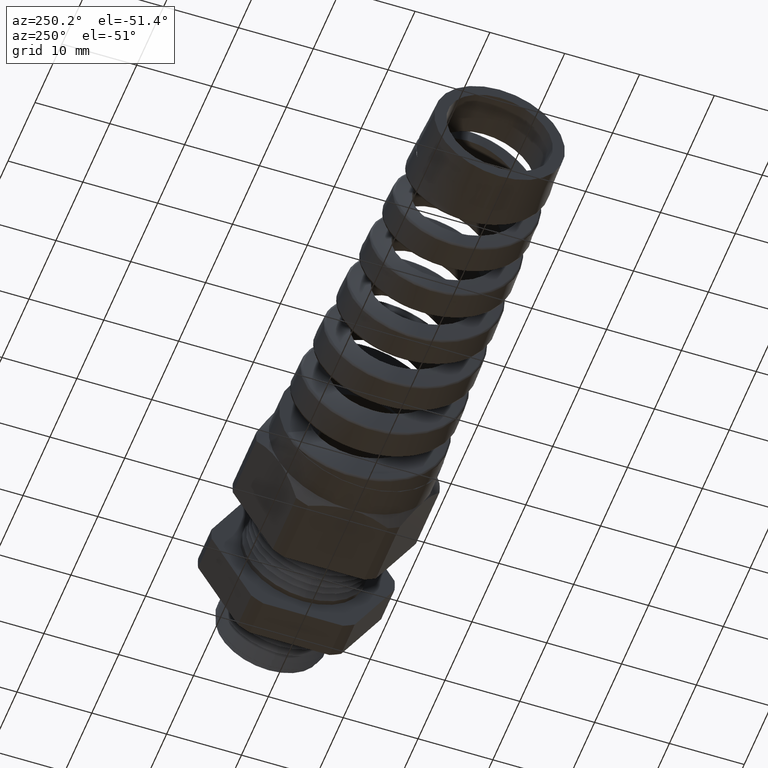
[diagram: clean part render]
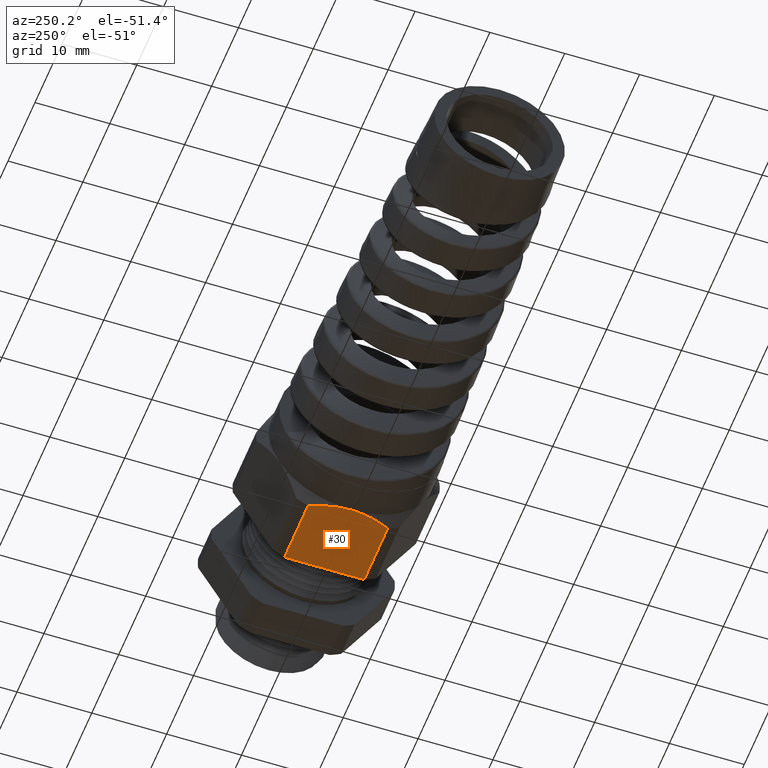
[diagram: same view with one face highlighted and labeled with its STEP entity id]
A machine part, auxiliary view. The second image highlights one B-rep face of the part: STEP entity #30.
In plain terms, the highlighted planar face has unit normal (0, 0, -1).
Its self-contained STEP definition (entity closure, byte-faithful):
#7 = EDGE_CURVE ( 'NONE', #11, #37, #975, .T. ) ;
#11 = VERTEX_POINT ( 'NONE', #1052 ) ;
#12 = ORIENTED_EDGE ( 'NONE', *, *, #13, .F. ) ;
#13 = EDGE_CURVE ( 'NONE', #27, #11, #1051, .T. ) ;
#26 = EDGE_CURVE ( 'NONE', #27, #998, #1020, .T. ) ;
#27 = VERTEX_POINT ( 'NONE', #1092 ) ;
#30 = ADVANCED_FACE ( 'NONE', ( #1082 ), #1081, .T. ) ;
#31 = EDGE_LOOP ( 'NONE', ( #32, #33, #35, #38, #12 ) ) ;
#32 = ORIENTED_EDGE ( 'NONE', *, *, #26, .T. ) ;
#33 = ORIENTED_EDGE ( 'NONE', *, *, #34, .T. ) ;
#34 = EDGE_CURVE ( 'NONE', #998, #287, #1074, .T. ) ;
#35 = ORIENTED_EDGE ( 'NONE', *, *, #36, .T. ) ;
#36 = EDGE_CURVE ( 'NONE', #287, #37, #1060, .T. ) ;
#37 = VERTEX_POINT ( 'NONE', #1059 ) ;
#38 = ORIENTED_EDGE ( 'NONE', *, *, #7, .F. ) ;
#287 = VERTEX_POINT ( 'NONE', #1839 ) ;
#975 = LINE ( 'NONE', #1057, #1056 ) ;
#998 = VERTEX_POINT ( 'NONE', #4816 ) ;
#1020 = LINE ( 'NONE', #1095, #1094 ) ;
#1048 = DIRECTION ( 'NONE',  ( 0.0000000000000000000, 1.000000000000000000, 0.0000000000000000000 ) ) ;
#1049 = VECTOR ( 'NONE', #1048, 39.37007874015748100 ) ;
#1050 = CARTESIAN_POINT ( 'NONE',  ( -0.8175590551181100000, 0.3300000000000000200, -0.4350000000000000000 ) ) ;
#1051 = LINE ( 'NONE', #1050, #1049 ) ;
#1052 = CARTESIAN_POINT ( 'NONE',  ( -0.8175590551181100000, 0.2095688967857590200, -0.4350000000000000000 ) ) ;
#1055 = DIRECTION ( 'NONE',  ( -1.000000000000000000, 0.0000000000000000000, 0.0000000000000000000 ) ) ;
#1056 = VECTOR ( 'NONE', #1055, 39.37007874015748100 ) ;
#1057 = CARTESIAN_POINT ( 'NONE',  ( 0.0000000000000000000, 0.2095688967857590200, -0.4350000000000000000 ) ) ;
#1059 = CARTESIAN_POINT ( 'NONE',  ( -1.163409842519685000, 0.2095688967857589900, -0.4349999999999999400 ) ) ;
#1060 = B_SPLINE_CURVE_WITH_KNOTS ( 'NONE', 3,
 ( #1138, #1136, #1135, #1134, #1133, #1131, #1129, #1128, #1127, #1125 ),
 .UNSPECIFIED., .F., .F.,
 ( 4, 2, 2, 2, 4 ),
 ( 0.01302108228373583700, 0.01438190520197593500, 0.01574272812021603300, 0.01710355103845612900, 0.01846437395669622800 ),
 .UNSPECIFIED. ) ;
#1063 = CARTESIAN_POINT ( 'NONE',  ( -1.211259842519684800, 0.0000000000000000000, -0.4350000000000000000 ) ) ;
#1064 = CARTESIAN_POINT ( 'NONE',  ( -1.211259842519685200, -0.03642096200278204700, -0.4350000000000000000 ) ) ;
#1065 = CARTESIAN_POINT ( 'NONE',  ( -1.206644187816796600, -0.07204736442187348300, -0.4349999999999999400 ) ) ;
#1067 = CARTESIAN_POINT ( 'NONE',  ( -1.189928342842210100, -0.1420117476062552100, -0.4350000000000000500 ) ) ;
#1068 = CARTESIAN_POINT ( 'NONE',  ( -1.177733022916616500, -0.1765680662201013800, -0.4349999999999999400 ) ) ;
#1070 = CARTESIAN_POINT ( 'NONE',  ( -1.163409842519685000, -0.2095688967857589300, -0.4350000000000000000 ) ) ;
#1074 = B_SPLINE_CURVE_WITH_KNOTS ( 'NONE', 3,
 ( #1070, #1068, #1067, #1065, #1064, #1063 ),
 .UNSPECIFIED., .F., .F.,
 ( 4, 2, 4 ),
 ( 0.007570134154214037400, 0.01029560821897493700, 0.01302108228373583700 ),
 .UNSPECIFIED. ) ;
#1077 = DIRECTION ( 'NONE',  ( -1.000000000000000000, 0.0000000000000000000, 0.0000000000000000000 ) ) ;
#1078 = DIRECTION ( 'NONE',  ( 0.0000000000000000000, 0.0000000000000000000, -1.000000000000000000 ) ) ;
#1079 = CARTESIAN_POINT ( 'NONE',  ( 0.0000000000000000000, 0.2095688967857589300, -0.4350000000000000000 ) ) ;
#1080 = AXIS2_PLACEMENT_3D ( 'NONE', #1079, #1078, #1077 ) ;
#1081 = PLANE ( 'NONE',  #1080 ) ;
#1082 = FACE_OUTER_BOUND ( 'NONE', #31, .T. ) ;
#1092 = CARTESIAN_POINT ( 'NONE',  ( -0.8175590551181100000, -0.2095688967857589300, -0.4350000000000000000 ) ) ;
#1093 = DIRECTION ( 'NONE',  ( -1.000000000000000000, 0.0000000000000000000, 0.0000000000000000000 ) ) ;
#1094 = VECTOR ( 'NONE', #1093, 39.37007874015748100 ) ;
#1095 = CARTESIAN_POINT ( 'NONE',  ( 0.0000000000000000000, -0.2095688967857589300, -0.4350000000000000000 ) ) ;
#1125 = CARTESIAN_POINT ( 'NONE',  ( -1.163409842519685000, 0.2095688967857589900, -0.4349999999999999400 ) ) ;
#1127 = CARTESIAN_POINT ( 'NONE',  ( -1.170570467109576200, 0.1930707062801151100, -0.4350000000000000000 ) ) ;
#1128 = CARTESIAN_POINT ( 'NONE',  ( -1.177209894290797600, 0.1761874914065259000, -0.4349999999999999400 ) ) ;
#1129 = CARTESIAN_POINT ( 'NONE',  ( -1.188982244041872000, 0.1419048281921316300, -0.4350000000000000000 ) ) ;
#1131 = CARTESIAN_POINT ( 'NONE',  ( -1.194081482836684600, 0.1246115883433620800, -0.4349999999999999400 ) ) ;
#1133 = CARTESIAN_POINT ( 'NONE',  ( -1.202437978627672900, 0.08966953692545985600, -0.4350000000000000000 ) ) ;
#1134 = CARTESIAN_POINT ( 'NONE',  ( -1.205694142757152400, 0.07202051439197788800, -0.4349999999999999400 ) ) ;
#1135 = CARTESIAN_POINT ( 'NONE',  ( -1.210106077375599800, 0.03631701440643144600, -0.4350000000000000500 ) ) ;
#1136 = CARTESIAN_POINT ( 'NONE',  ( -1.211259842519684500, 0.01818490237663858400, -0.4349999999999999400 ) ) ;
#1138 = CARTESIAN_POINT ( 'NONE',  ( -1.211259842519684800, 0.0000000000000000000, -0.4350000000000000000 ) ) ;
#1839 = CARTESIAN_POINT ( 'NONE',  ( -1.211259842519684800, 0.0000000000000000000, -0.4350000000000000000 ) ) ;
#4816 = CARTESIAN_POINT ( 'NONE',  ( -1.163409842519685000, -0.2095688967857589300, -0.4350000000000000000 ) ) ;